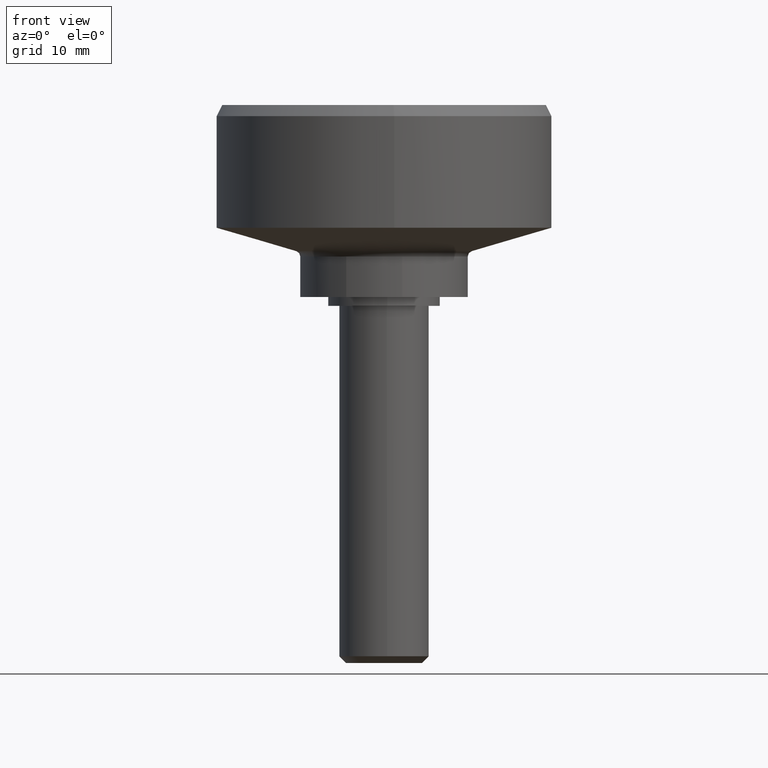
[diagram: clean part render]
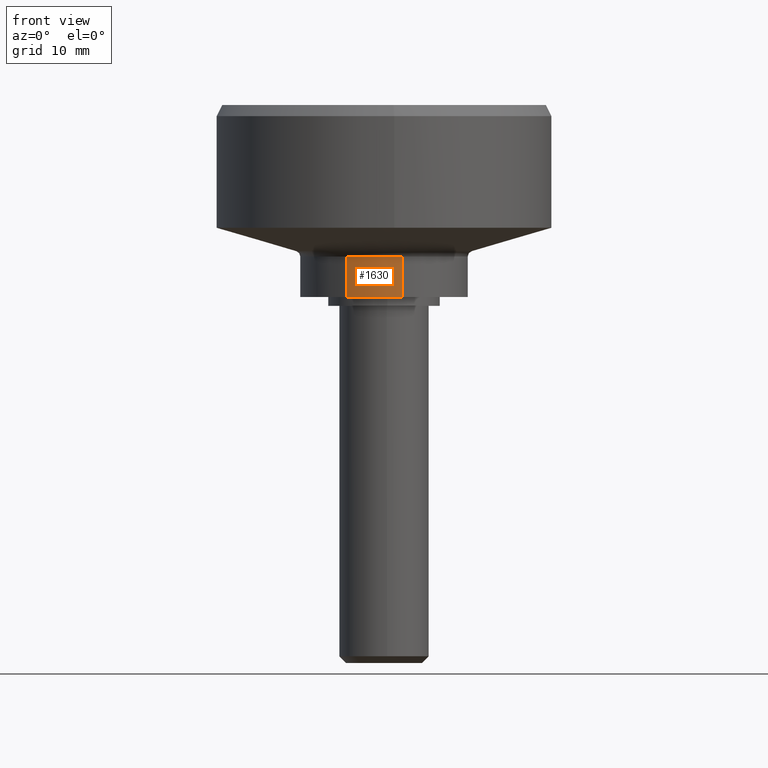
[diagram: same view with one face highlighted and labeled with its STEP entity id]
A machine part, front view. The second image highlights one B-rep face of the part: STEP entity #1630.
In plain terms, the highlighted face is a freeform B-spline surface patch.
Its self-contained STEP definition (entity closure, byte-faithful):
#1441=CARTESIAN_POINT('',(-3.382609829655960,-6.693874120439229,4.425598000020203));
#1442=VERTEX_POINT('',#1441);
#1505=CARTESIAN_POINT('',(1.623285749747485,-7.322222570676984,4.425597999999702));
#1506=VERTEX_POINT('',#1505);
#1520=CARTESIAN_POINT('',(1.623285886490788,-7.322222540362166,0.800002999999990));
#1521=VERTEX_POINT('',#1520);
#1522=CARTESIAN_POINT('',(1.623285749747485,-7.322222570676984,4.425597999999702));
#1523=CARTESIAN_POINT('',(1.623285886490788,-7.322222540362166,0.800002999999990));
#1524=QUASI_UNIFORM_CURVE('',1,(#1522,#1523),.UNSPECIFIED.,.F.,.U.);
#1525=EDGE_CURVE('',#1506,#1521,#1524,.T.);
#1559=CARTESIAN_POINT('',(-3.382610984584499,-6.693873536821209,0.800002999999990));
#1560=VERTEX_POINT('',#1559);
#1574=CARTESIAN_POINT('',(-3.382609829655960,-6.693874120439229,4.425598000020203));
#1575=CARTESIAN_POINT('',(-3.382610984584499,-6.693873536821209,0.800002999999990));
#1576=QUASI_UNIFORM_CURVE('',1,(#1574,#1575),.UNSPECIFIED.,.F.,.U.);
#1577=EDGE_CURVE('',#1442,#1560,#1576,.T.);
#1582=CARTESIAN_POINT('',(1.623297104535771,-7.322220053399498,4.516237875136693));
#1583=CARTESIAN_POINT('',(-0.991867253741442,-7.901988033563606,4.516237875136693));
#1584=CARTESIAN_POINT('',(-3.382614201223764,-6.693871911358874,4.516237875136694));
#1585=CARTESIAN_POINT('',(1.623297104535771,-7.322220053399498,0.707097128121573));
#1586=CARTESIAN_POINT('',(-0.991867253741442,-7.901988033563606,0.707097128121573));
#1587=CARTESIAN_POINT('',(-3.382614201223764,-6.693871911358874,0.707097128121573));
#1595=(BOUNDED_SURFACE()B_SPLINE_SURFACE(2,1,((#1582,#1585),(#1583,#1586),(#1584,#1587)),.UNSPECIFIED.,.F.,.F.,.U.)B_SPLINE_SURFACE_WITH_KNOTS((3,3),(2,2),(0.0,5.454143746330534),(0.0,3.809140747015122),.UNSPECIFIED.)GEOMETRIC_REPRESENTATION_ITEM()RATIONAL_B_SPLINE_SURFACE(((1.0,1.0),(0.871126983722081,0.871126983722081),(0.855662221768731,0.855662221768731)))REPRESENTATION_ITEM('')SURFACE());
#1596=CARTESIAN_POINT('',(1.623285749747485,-7.322222570676984,4.425597999999702));
#1597=CARTESIAN_POINT('',(0.821377702639469,-7.500000000000000,4.425597999999896));
#1598=CARTESIAN_POINT('',(0.0,-7.500000000000000,4.425597999999895));
#1599=CARTESIAN_POINT('',(-1.787360766141095,-7.500000000000000,4.425597999999896));
#1600=CARTESIAN_POINT('',(-3.382609829655960,-6.693874120439229,4.425598000020202));
#1608=(BOUNDED_CURVE()B_SPLINE_CURVE(2,(#1596,#1597,#1598,#1599,#1600),.UNSPECIFIED.,.F.,.U.)B_SPLINE_CURVE_WITH_KNOTS((3,2,3),(0.712960139195385,0.750000000000000,0.826686976935076),.UNSPECIFIED.)CURVE()GEOMETRIC_REPRESENTATION_ITEM()RATIONAL_B_SPLINE_CURVE((0.926068934881781,0.956605103778136,1.0,0.910155617937650,0.875430388314993))REPRESENTATION_ITEM(''));
#1609=EDGE_CURVE('',#1506,#1442,#1608,.T.);
#1610=ORIENTED_EDGE('',*,*,#1609,.T.);
#1611=ORIENTED_EDGE('',*,*,#1577,.T.);
#1612=CARTESIAN_POINT('',(1.623285886490788,-7.322222540362166,0.800002999999990));
#1613=CARTESIAN_POINT('',(0.821377773511061,-7.500000000000000,0.800002999999990));
#1614=CARTESIAN_POINT('',(0.0,-7.500000000000000,0.800002999999990));
#1615=CARTESIAN_POINT('',(-1.787361449894032,-7.499999999999999,0.800002999999990));
#1616=CARTESIAN_POINT('',(-3.382610984584499,-6.693873536821210,0.800002999999990));
#1624=(BOUNDED_CURVE()B_SPLINE_CURVE(2,(#1612,#1613,#1614,#1615,#1616),.UNSPECIFIED.,.F.,.U.)B_SPLINE_CURVE_WITH_KNOTS((3,2,3),(0.712960136138132,0.750000000000000,0.826687003635874),.UNSPECIFIED.)CURVE()GEOMETRIC_REPRESENTATION_ITEM()RATIONAL_B_SPLINE_CURVE((0.926068929840899,0.956605100196342,1.0,0.910155586655720,0.875430364133806))REPRESENTATION_ITEM(''));
#1625=EDGE_CURVE('',#1521,#1560,#1624,.T.);
#1626=ORIENTED_EDGE('',*,*,#1625,.F.);
#1627=ORIENTED_EDGE('',*,*,#1525,.F.);
#1628=EDGE_LOOP('',(#1610,#1611,#1626,#1627));
#1629=FACE_OUTER_BOUND('',#1628,.T.);
#1630=ADVANCED_FACE('',(#1629),#1595,.T.);